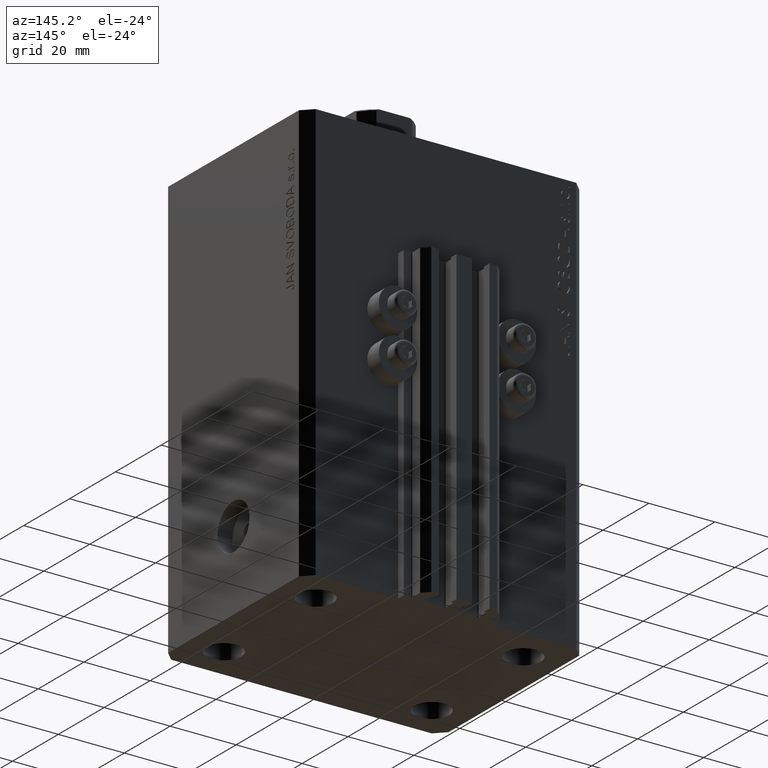
[diagram: clean part render]
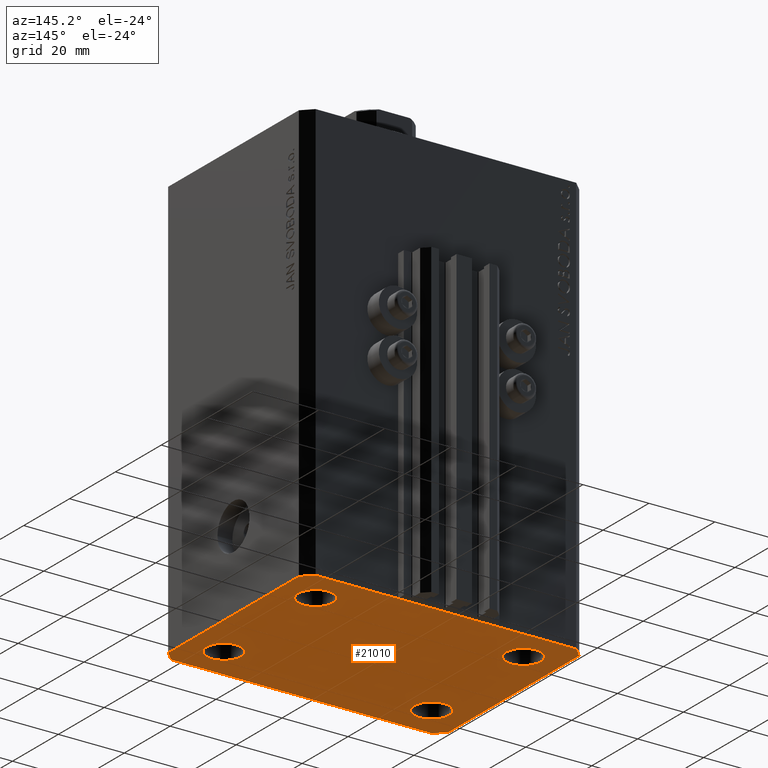
[diagram: same view with one face highlighted and labeled with its STEP entity id]
A machine part, auxiliary view. The second image highlights one B-rep face of the part: STEP entity #21010.
In plain terms, the highlighted planar face has unit normal (0, 0, 1).
Its self-contained STEP definition (entity closure, byte-faithful):
#368 = ORIENTED_EDGE ( 'NONE', *, *, #32918, .F. ) ;
#383 = DIRECTION ( 'NONE',  ( -0.000000000000000000, -0.000000000000000000, -1.000000000000000000 ) ) ;
#535 = VERTEX_POINT ( 'NONE', #43602 ) ;
#1515 = CARTESIAN_POINT ( 'NONE',  ( -36.74999999999999289, -20.00000000000000355, -127.0000000000000000 ) ) ;
#2014 = ORIENTED_EDGE ( 'NONE', *, *, #46221, .F. ) ;
#2050 = LINE ( 'NONE', #30285, #44527 ) ;
#2308 = CARTESIAN_POINT ( 'NONE',  ( 42.50000000000051870, 28.49999999999995381, -127.0000000000000000 ) ) ;
#3726 = CIRCLE ( 'NONE', #25092, 5.250000000000000888 ) ;
#4132 = VERTEX_POINT ( 'NONE', #16196 ) ;
#4185 = ORIENTED_EDGE ( 'NONE', *, *, #25757, .F. ) ;
#4838 = LINE ( 'NONE', #44478, #28153 ) ;
#4937 = DIRECTION ( 'NONE',  ( -0.000000000000000000, -0.000000000000000000, -1.000000000000000000 ) ) ;
#5195 = ORIENTED_EDGE ( 'NONE', *, *, #41072, .F. ) ;
#5914 = CARTESIAN_POINT ( 'NONE',  ( -31.50000000000000000, 19.99999999999999645, -127.0000000000000000 ) ) ;
#6174 = FACE_BOUND ( 'NONE', #6701, .T. ) ;
#6701 = EDGE_LOOP ( 'NONE', ( #13068, #33552 ) ) ;
#7135 = VECTOR ( 'NONE', #30218, 1000.000000000000000 ) ;
#7702 = DIRECTION ( 'NONE',  ( 0.7071067811865483499, 0.7071067811865466846, 0.000000000000000000 ) ) ;
#7809 = DIRECTION ( 'NONE',  ( -0.7071067811865356934, 0.7071067811865594521, 0.000000000000000000 ) ) ;
#8233 = VECTOR ( 'NONE', #7809, 1000.000000000000114 ) ;
#8414 = LINE ( 'NONE', #15585, #16777 ) ;
#8726 = DIRECTION ( 'NONE',  ( 1.000000000000000000, 0.000000000000000000, 0.000000000000000000 ) ) ;
#9601 = EDGE_CURVE ( 'NONE', #44895, #10815, #31036, .T. ) ;
#9912 = DIRECTION ( 'NONE',  ( -0.7071067811865471286, -0.7071067811865479058, 0.000000000000000000 ) ) ;
#9979 = DIRECTION ( 'NONE',  ( 1.000000000000000000, 0.000000000000000000, -0.000000000000000000 ) ) ;
#10310 = CIRCLE ( 'NONE', #19486, 5.249999999999997335 ) ;
#10316 = CARTESIAN_POINT ( 'NONE',  ( 36.74999999999999289, -20.00000000000000355, -127.0000000000000000 ) ) ;
#10720 = EDGE_CURVE ( 'NONE', #28397, #4132, #10310, .T. ) ;
#10815 = VERTEX_POINT ( 'NONE', #45253 ) ;
#11107 = ORIENTED_EDGE ( 'NONE', *, *, #20576, .F. ) ;
#11494 = VERTEX_POINT ( 'NONE', #14089 ) ;
#11635 = VERTEX_POINT ( 'NONE', #18141 ) ;
#11701 = EDGE_CURVE ( 'NONE', #46784, #38679, #2050, .T. ) ;
#11966 = CIRCLE ( 'NONE', #14270, 5.249999999999997335 ) ;
#12076 = CARTESIAN_POINT ( 'NONE',  ( 42.50000000000000711, -28.50000000000000355, -127.0000000000000000 ) ) ;
#12095 = CARTESIAN_POINT ( 'NONE',  ( 31.50000000000000000, 19.99999999999999289, -127.0000000000000000 ) ) ;
#12415 = CIRCLE ( 'NONE', #26165, 5.249999999999997335 ) ;
#13068 = ORIENTED_EDGE ( 'NONE', *, *, #23826, .F. ) ;
#13569 = PLANE ( 'NONE',  #26363 ) ;
#13844 = AXIS2_PLACEMENT_3D ( 'NONE', #16069, #45657, #30623 ) ;
#14089 = CARTESIAN_POINT ( 'NONE',  ( -26.25000000000000000, 19.99999999999999645, -127.0000000000000000 ) ) ;
#14187 = VERTEX_POINT ( 'NONE', #44696 ) ;
#14270 = AXIS2_PLACEMENT_3D ( 'NONE', #12095, #4937, #34055 ) ;
#14477 = EDGE_LOOP ( 'NONE', ( #36895, #17587 ) ) ;
#14967 = CARTESIAN_POINT ( 'NONE',  ( 31.49999999999999289, -20.00000000000000355, -127.0000000000000000 ) ) ;
#15439 = DIRECTION ( 'NONE',  ( -0.000000000000000000, -0.000000000000000000, -1.000000000000000000 ) ) ;
#15585 = CARTESIAN_POINT ( 'NONE',  ( 39.50000000000000711, -31.50000000000000000, -127.0000000000000000 ) ) ;
#15626 = DIRECTION ( 'NONE',  ( -0.000000000000000000, -0.000000000000000000, -1.000000000000000000 ) ) ;
#16069 = CARTESIAN_POINT ( 'NONE',  ( 31.49999999999999289, -20.00000000000000355, -127.0000000000000000 ) ) ;
#16196 = CARTESIAN_POINT ( 'NONE',  ( 26.24999999999999645, -20.00000000000000355, -127.0000000000000000 ) ) ;
#16721 = DIRECTION ( 'NONE',  ( 1.000000000000000000, 0.000000000000000000, 0.000000000000000000 ) ) ;
#16777 = VECTOR ( 'NONE', #7702, 1000.000000000000000 ) ;
#17316 = CARTESIAN_POINT ( 'NONE',  ( -39.50000000000000711, 31.50000000000000000, -127.0000000000000000 ) ) ;
#17345 = ORIENTED_EDGE ( 'NONE', *, *, #44382, .F. ) ;
#17587 = ORIENTED_EDGE ( 'NONE', *, *, #44249, .F. ) ;
#17926 = VERTEX_POINT ( 'NONE', #26496 ) ;
#18141 = CARTESIAN_POINT ( 'NONE',  ( -42.50000000000000000, 28.50000000000000000, -127.0000000000000000 ) ) ;
#18525 = ORIENTED_EDGE ( 'NONE', *, *, #43490, .F. ) ;
#18637 = VECTOR ( 'NONE', #24028, 1000.000000000000000 ) ;
#18782 = DIRECTION ( 'NONE',  ( 8.886653596232072440E-15, 1.000000000000000000, 0.000000000000000000 ) ) ;
#18803 = CARTESIAN_POINT ( 'NONE',  ( 42.50000000000051870, 28.49999999999995381, -127.0000000000000000 ) ) ;
#19486 = AXIS2_PLACEMENT_3D ( 'NONE', #14967, #22592, #29519 ) ;
#20487 = DIRECTION ( 'NONE',  ( 1.000000000000000000, 0.000000000000000000, 0.000000000000000000 ) ) ;
#20501 = FACE_BOUND ( 'NONE', #36177, .T. ) ;
#20576 = EDGE_CURVE ( 'NONE', #10815, #44895, #36263, .T. ) ;
#20684 = CARTESIAN_POINT ( 'NONE',  ( -42.50000000000000000, -28.50000000000000000, -127.0000000000000000 ) ) ;
#20732 = FACE_OUTER_BOUND ( 'NONE', #24513, .T. ) ;
#20914 = LINE ( 'NONE', #20684, #18637 ) ;
#21010 = ADVANCED_FACE ( 'NONE', ( #35285, #20501, #6174, #31480, #20732 ), #13569, .F. ) ;
#22592 = DIRECTION ( 'NONE',  ( -0.000000000000000000, -0.000000000000000000, -1.000000000000000000 ) ) ;
#23826 = EDGE_CURVE ( 'NONE', #535, #29253, #11966, .T. ) ;
#23867 = VERTEX_POINT ( 'NONE', #2308 ) ;
#24028 = DIRECTION ( 'NONE',  ( 0.7071067811865471286, -0.7071067811865479058, 0.000000000000000000 ) ) ;
#24504 = ORIENTED_EDGE ( 'NONE', *, *, #11701, .F. ) ;
#24513 = EDGE_LOOP ( 'NONE', ( #368, #4185, #17345, #45123, #24504, #2014, #18525, #5195 ) ) ;
#25048 = CARTESIAN_POINT ( 'NONE',  ( -42.50000000000000000, 28.50000000000000000, -127.0000000000000000 ) ) ;
#25092 = AXIS2_PLACEMENT_3D ( 'NONE', #29989, #15439, #26872 ) ;
#25757 = EDGE_CURVE ( 'NONE', #23867, #46226, #40514, .T. ) ;
#26165 = AXIS2_PLACEMENT_3D ( 'NONE', #37381, #383, #8726 ) ;
#26363 = AXIS2_PLACEMENT_3D ( 'NONE', #42689, #45804, #9979 ) ;
#26496 = CARTESIAN_POINT ( 'NONE',  ( 42.50000000000000711, -28.50000000000000355, -127.0000000000000000 ) ) ;
#26790 = CIRCLE ( 'NONE', #13844, 5.249999999999997335 ) ;
#26872 = DIRECTION ( 'NONE',  ( 1.000000000000000000, 0.000000000000000000, 0.000000000000000000 ) ) ;
#27905 = EDGE_CURVE ( 'NONE', #11494, #45039, #3726, .T. ) ;
#28153 = VECTOR ( 'NONE', #40893, 1000.000000000000000 ) ;
#28397 = VERTEX_POINT ( 'NONE', #10316 ) ;
#29142 = VECTOR ( 'NONE', #9912, 1000.000000000000000 ) ;
#29253 = VERTEX_POINT ( 'NONE', #33220 ) ;
#29519 = DIRECTION ( 'NONE',  ( 1.000000000000000000, 0.000000000000000000, 0.000000000000000000 ) ) ;
#29989 = CARTESIAN_POINT ( 'NONE',  ( -31.50000000000000000, 19.99999999999999645, -127.0000000000000000 ) ) ;
#30218 = DIRECTION ( 'NONE',  ( 0.000000000000000000, -1.000000000000000000, 0.000000000000000000 ) ) ;
#30285 = CARTESIAN_POINT ( 'NONE',  ( -39.50000000000000711, -31.50000000000000000, -127.0000000000000000 ) ) ;
#30623 = DIRECTION ( 'NONE',  ( 1.000000000000000000, 0.000000000000000000, 0.000000000000000000 ) ) ;
#30920 = AXIS2_PLACEMENT_3D ( 'NONE', #46451, #15626, #44270 ) ;
#30982 = EDGE_CURVE ( 'NONE', #38679, #17926, #8414, .T. ) ;
#31036 = CIRCLE ( 'NONE', #44015, 5.250000000000000888 ) ;
#31480 = FACE_BOUND ( 'NONE', #14477, .T. ) ;
#31511 = AXIS2_PLACEMENT_3D ( 'NONE', #5914, #42674, #20487 ) ;
#32918 = EDGE_CURVE ( 'NONE', #46226, #45473, #4838, .T. ) ;
#33220 = CARTESIAN_POINT ( 'NONE',  ( 26.25000000000000355, 19.99999999999999289, -127.0000000000000000 ) ) ;
#33397 = CARTESIAN_POINT ( 'NONE',  ( -36.75000000000000000, 19.99999999999999645, -127.0000000000000000 ) ) ;
#33552 = ORIENTED_EDGE ( 'NONE', *, *, #42838, .F. ) ;
#34055 = DIRECTION ( 'NONE',  ( 1.000000000000000000, 0.000000000000000000, 0.000000000000000000 ) ) ;
#34562 = VECTOR ( 'NONE', #18782, 1000.000000000000000 ) ;
#35091 = DIRECTION ( 'NONE',  ( -0.000000000000000000, -0.000000000000000000, -1.000000000000000000 ) ) ;
#35219 = DIRECTION ( 'NONE',  ( 1.000000000000000000, 0.000000000000000000, 0.000000000000000000 ) ) ;
#35285 = FACE_BOUND ( 'NONE', #46006, .T. ) ;
#35470 = CARTESIAN_POINT ( 'NONE',  ( 39.50000000000056843, 31.50000000000000000, -127.0000000000000000 ) ) ;
#36177 = EDGE_LOOP ( 'NONE', ( #43181, #39535 ) ) ;
#36263 = CIRCLE ( 'NONE', #30920, 5.250000000000000888 ) ;
#36895 = ORIENTED_EDGE ( 'NONE', *, *, #27905, .F. ) ;
#37381 = CARTESIAN_POINT ( 'NONE',  ( 31.50000000000000000, 19.99999999999999289, -127.0000000000000000 ) ) ;
#37390 = LINE ( 'NONE', #12076, #34562 ) ;
#37438 = ORIENTED_EDGE ( 'NONE', *, *, #9601, .F. ) ;
#38679 = VERTEX_POINT ( 'NONE', #46715 ) ;
#38800 = LINE ( 'NONE', #17316, #29142 ) ;
#39135 = CIRCLE ( 'NONE', #31511, 5.250000000000000888 ) ;
#39290 = EDGE_CURVE ( 'NONE', #4132, #28397, #26790, .T. ) ;
#39535 = ORIENTED_EDGE ( 'NONE', *, *, #39290, .F. ) ;
#40514 = LINE ( 'NONE', #18803, #8233 ) ;
#40893 = DIRECTION ( 'NONE',  ( -1.000000000000000000, 0.000000000000000000, 0.000000000000000000 ) ) ;
#41072 = EDGE_CURVE ( 'NONE', #45473, #11635, #38800, .T. ) ;
#41778 = CARTESIAN_POINT ( 'NONE',  ( -31.49999999999999289, -20.00000000000000355, -127.0000000000000000 ) ) ;
#42674 = DIRECTION ( 'NONE',  ( -0.000000000000000000, -0.000000000000000000, -1.000000000000000000 ) ) ;
#42689 = CARTESIAN_POINT ( 'NONE',  ( 0.000000000000000000, 0.000000000000000000, -127.0000000000000000 ) ) ;
#42838 = EDGE_CURVE ( 'NONE', #29253, #535, #12415, .T. ) ;
#43091 = CARTESIAN_POINT ( 'NONE',  ( -39.50000000000000711, 31.50000000000000000, -127.0000000000000000 ) ) ;
#43181 = ORIENTED_EDGE ( 'NONE', *, *, #10720, .F. ) ;
#43185 = LINE ( 'NONE', #25048, #7135 ) ;
#43490 = EDGE_CURVE ( 'NONE', #11635, #14187, #43185, .T. ) ;
#43602 = CARTESIAN_POINT ( 'NONE',  ( 36.75000000000000000, 19.99999999999999289, -127.0000000000000000 ) ) ;
#44015 = AXIS2_PLACEMENT_3D ( 'NONE', #41778, #35091, #16721 ) ;
#44249 = EDGE_CURVE ( 'NONE', #45039, #11494, #39135, .T. ) ;
#44270 = DIRECTION ( 'NONE',  ( 1.000000000000000000, 0.000000000000000000, 0.000000000000000000 ) ) ;
#44382 = EDGE_CURVE ( 'NONE', #17926, #23867, #37390, .T. ) ;
#44478 = CARTESIAN_POINT ( 'NONE',  ( 39.50000000000056843, 31.50000000000000000, -127.0000000000000000 ) ) ;
#44527 = VECTOR ( 'NONE', #35219, 1000.000000000000000 ) ;
#44696 = CARTESIAN_POINT ( 'NONE',  ( -42.50000000000000000, -28.50000000000000000, -127.0000000000000000 ) ) ;
#44895 = VERTEX_POINT ( 'NONE', #1515 ) ;
#45039 = VERTEX_POINT ( 'NONE', #33397 ) ;
#45123 = ORIENTED_EDGE ( 'NONE', *, *, #30982, .F. ) ;
#45253 = CARTESIAN_POINT ( 'NONE',  ( -26.24999999999999289, -20.00000000000000355, -127.0000000000000000 ) ) ;
#45473 = VERTEX_POINT ( 'NONE', #43091 ) ;
#45657 = DIRECTION ( 'NONE',  ( -0.000000000000000000, -0.000000000000000000, -1.000000000000000000 ) ) ;
#45804 = DIRECTION ( 'NONE',  ( 0.000000000000000000, 0.000000000000000000, 1.000000000000000000 ) ) ;
#46006 = EDGE_LOOP ( 'NONE', ( #11107, #37438 ) ) ;
#46221 = EDGE_CURVE ( 'NONE', #14187, #46784, #20914, .T. ) ;
#46226 = VERTEX_POINT ( 'NONE', #35470 ) ;
#46451 = CARTESIAN_POINT ( 'NONE',  ( -31.49999999999999289, -20.00000000000000355, -127.0000000000000000 ) ) ;
#46715 = CARTESIAN_POINT ( 'NONE',  ( 39.50000000000000711, -31.50000000000000000, -127.0000000000000000 ) ) ;
#46760 = CARTESIAN_POINT ( 'NONE',  ( -39.50000000000000711, -31.50000000000000000, -127.0000000000000000 ) ) ;
#46784 = VERTEX_POINT ( 'NONE', #46760 ) ;